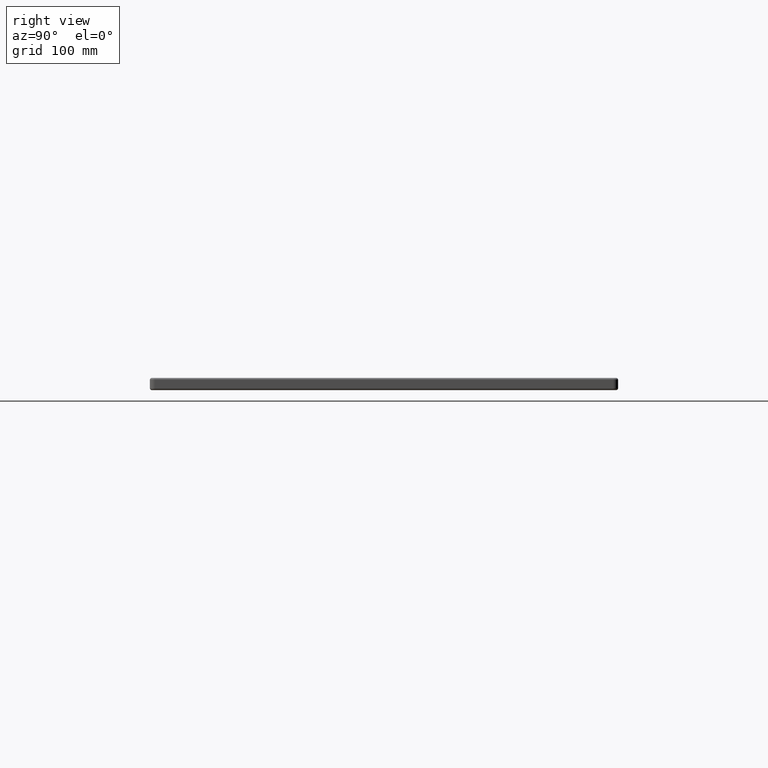
[diagram: clean part render]
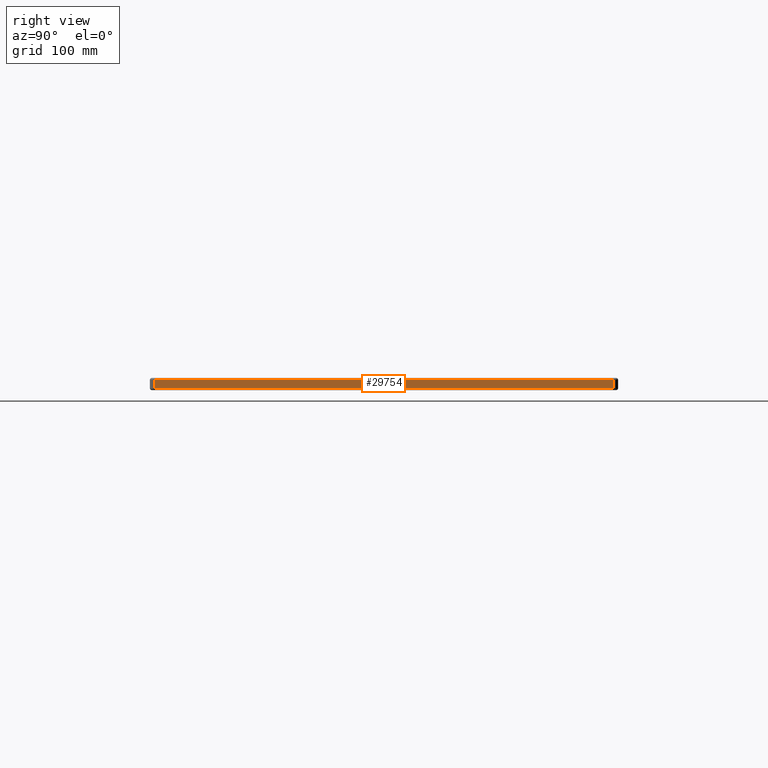
[diagram: same view with one face highlighted and labeled with its STEP entity id]
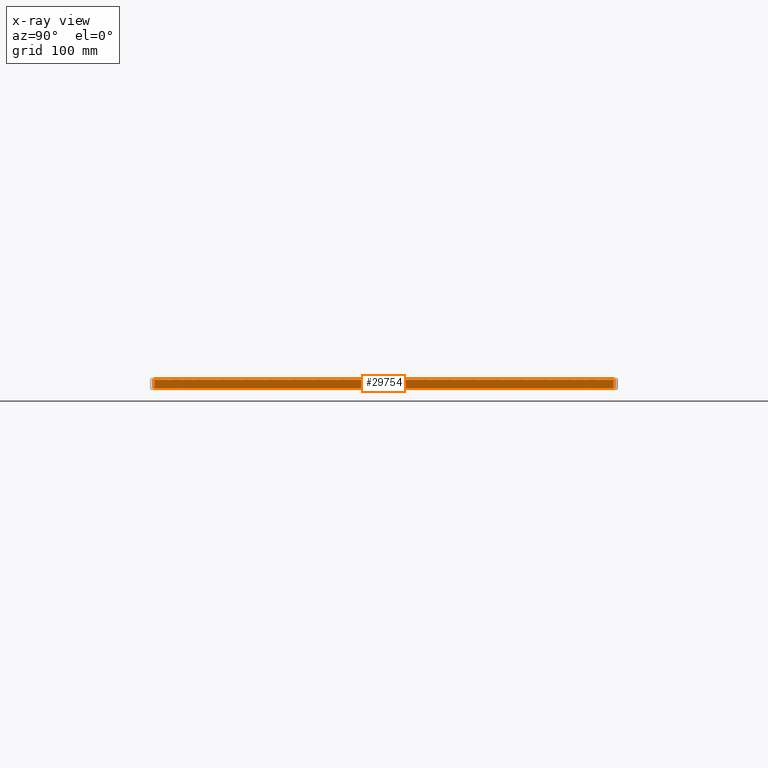
[diagram: x-ray of the same camera — body ghosted, the highlighted face saturated]
A machine part, right view. The second image highlights one B-rep face of the part: STEP entity #29754.
The next image is the same camera in x-ray: the body ghosted, the highlighted face saturated — about 0% of this face is hidden behind the body in this view.
In plain terms, the highlighted planar face has unit normal (1, 0, 0).
Its self-contained STEP definition (entity closure, byte-faithful):
#604 = VERTEX_POINT ( 'NONE', #9415 ) ;
#680 = CARTESIAN_POINT ( 'NONE',  ( 600.0000000000000000, 495.0000000000000000, -13.00000000000000000 ) ) ;
#686 = EDGE_CURVE ( 'NONE', #604, #16927, #28131, .T. ) ;
#2344 = VECTOR ( 'NONE', #30918, 1000.000000000000000 ) ;
#3653 = DIRECTION ( 'NONE',  ( 1.000000000000000000, 0.0000000000000000000, 0.0000000000000000000 ) ) ;
#3768 = ORIENTED_EDGE ( 'NONE', *, *, #28561, .T. ) ;
#6589 = PLANE ( 'NONE',  #17844 ) ;
#7934 = EDGE_CURVE ( 'NONE', #21594, #18009, #20018, .T. ) ;
#8907 = VECTOR ( 'NONE', #26909, 1000.000000000000000 ) ;
#8970 = ORIENTED_EDGE ( 'NONE', *, *, #686, .T. ) ;
#9415 = CARTESIAN_POINT ( 'NONE',  ( 600.0000000000000000, 495.0000000000000000, -2.000000000000000000 ) ) ;
#9856 = CARTESIAN_POINT ( 'NONE',  ( 600.0000000000000000, 5.000000000000004400, -2.000000000000000000 ) ) ;
#10879 = LINE ( 'NONE', #29700, #26831 ) ;
#11560 = CARTESIAN_POINT ( 'NONE',  ( 600.0000000000000000, 0.0000000000000000000, -13.00000000000000000 ) ) ;
#13859 = VECTOR ( 'NONE', #30212, 1000.000000000000000 ) ;
#14739 = EDGE_CURVE ( 'NONE', #16927, #21594, #10879, .T. ) ;
#14841 = CARTESIAN_POINT ( 'NONE',  ( 600.0000000000000000, 495.0000000000000000, -11.00000000000000000 ) ) ;
#16927 = VERTEX_POINT ( 'NONE', #30314 ) ;
#17061 = CARTESIAN_POINT ( 'NONE',  ( 600.0000000000000000, 0.0000000000000000000, -11.00000000000000000 ) ) ;
#17844 = AXIS2_PLACEMENT_3D ( 'NONE', #11560, #3653, #24958 ) ;
#18009 = VERTEX_POINT ( 'NONE', #14841 ) ;
#20018 = LINE ( 'NONE', #17061, #13859 ) ;
#21285 = ORIENTED_EDGE ( 'NONE', *, *, #14739, .T. ) ;
#21594 = VERTEX_POINT ( 'NONE', #24759 ) ;
#23701 = LINE ( 'NONE', #680, #8907 ) ;
#24759 = CARTESIAN_POINT ( 'NONE',  ( 600.0000000000000000, 4.999999999999999100, -11.00000000000000000 ) ) ;
#24958 = DIRECTION ( 'NONE',  ( 0.0000000000000000000, 0.0000000000000000000, -1.000000000000000000 ) ) ;
#26831 = VECTOR ( 'NONE', #32443, 1000.000000000000000 ) ;
#26909 = DIRECTION ( 'NONE',  ( 0.0000000000000000000, 0.0000000000000000000, 1.000000000000000000 ) ) ;
#28131 = LINE ( 'NONE', #9856, #2344 ) ;
#28561 = EDGE_CURVE ( 'NONE', #18009, #604, #23701, .T. ) ;
#29700 = CARTESIAN_POINT ( 'NONE',  ( 600.0000000000000000, 4.999999999999999100, -13.00000000000000000 ) ) ;
#29754 = ADVANCED_FACE ( 'NONE', ( #32222 ), #6589, .T. ) ;
#30212 = DIRECTION ( 'NONE',  ( -0.0000000000000000000, 1.000000000000000000, 0.0000000000000000000 ) ) ;
#30314 = CARTESIAN_POINT ( 'NONE',  ( 600.0000000000000000, 4.999999999999999100, -2.000000000000000000 ) ) ;
#30486 = ORIENTED_EDGE ( 'NONE', *, *, #7934, .T. ) ;
#30918 = DIRECTION ( 'NONE',  ( -0.0000000000000000000, -1.000000000000000000, 0.0000000000000000000 ) ) ;
#31305 = EDGE_LOOP ( 'NONE', ( #21285, #30486, #3768, #8970 ) ) ;
#32222 = FACE_OUTER_BOUND ( 'NONE', #31305, .T. ) ;
#32443 = DIRECTION ( 'NONE',  ( 0.0000000000000000000, -0.0000000000000000000, -1.000000000000000000 ) ) ;